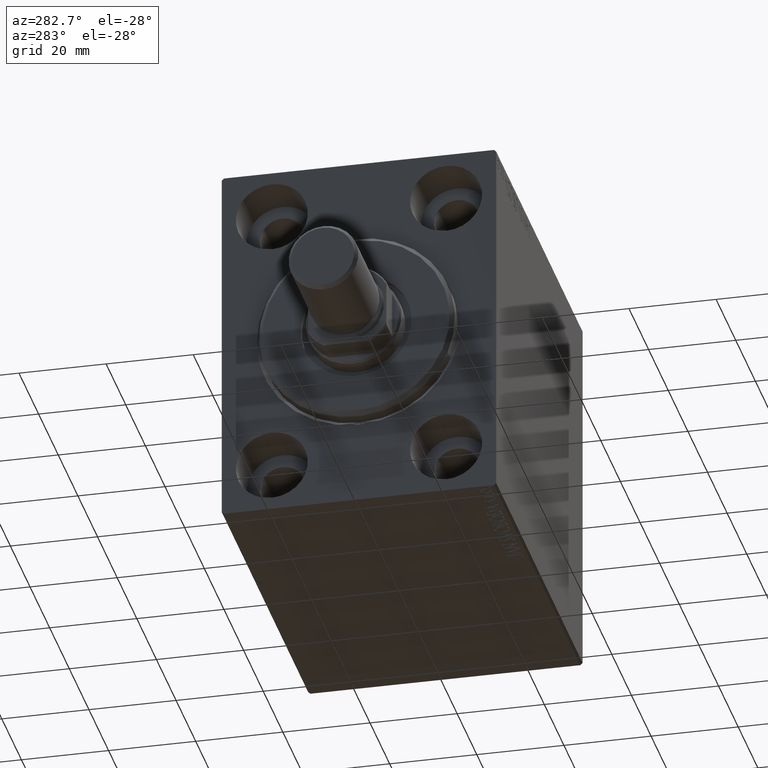
[diagram: clean part render]
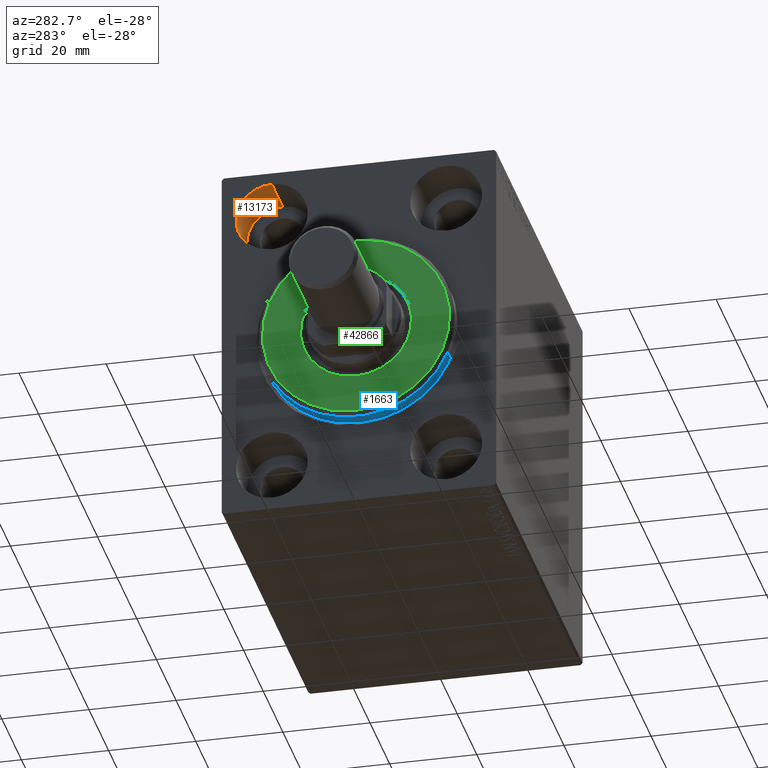
[diagram: same view with three faces highlighted in distinct colors, each labeled with its STEP entity id]
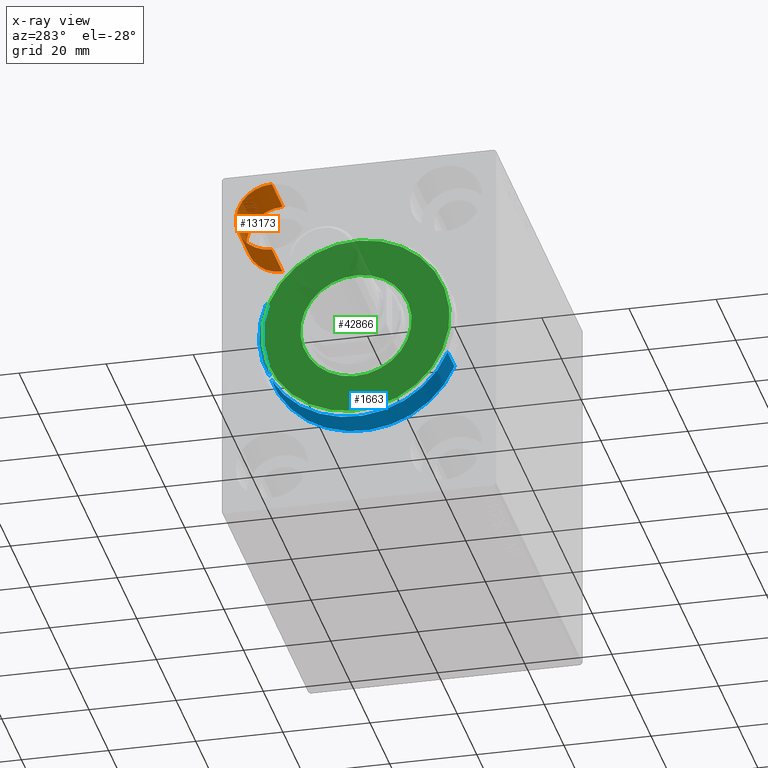
[diagram: x-ray of the same camera — body ghosted, the three highlighted faces saturated]
A machine part, auxiliary view with three faces highlighted in distinct colors.
The next image is the same camera in x-ray (body ghosted, the three faces saturated) — at least one of them is partly hidden behind the body in this view.
Their STEP definitions:

[orange] entity #13173 — the highlighted cylindrical surface (partial cylindrical patch) has radius 8.25 mm, axis along (-1, -0, -0).
#564 = CARTESIAN_POINT ( 'NONE',  ( 11.00000000000000000, 20.00000000000000355, 31.50000000000000000 ) ) ;
#2543 = LINE ( 'NONE', #32912, #39230 ) ;
#2712 = AXIS2_PLACEMENT_3D ( 'NONE', #40929, #23406, #10126 ) ;
#2977 = DIRECTION ( 'NONE',  ( -1.000000000000000000, -0.000000000000000000, -0.000000000000000000 ) ) ;
#4155 = DIRECTION ( 'NONE',  ( -1.000000000000000000, -0.000000000000000000, -0.000000000000000000 ) ) ;
#5238 = EDGE_LOOP ( 'NONE', ( #35251, #13447, #29697, #24319 ) ) ;
#9957 = AXIS2_PLACEMENT_3D ( 'NONE', #37701, #41077, #37265 ) ;
#10126 = DIRECTION ( 'NONE',  ( 0.000000000000000000, 0.000000000000000000, 1.000000000000000000 ) ) ;
#10450 = DIRECTION ( 'NONE',  ( 0.000000000000000000, 0.000000000000000000, 1.000000000000000000 ) ) ;
#11839 = LINE ( 'NONE', #19273, #25149 ) ;
#12505 = CARTESIAN_POINT ( 'NONE',  ( 11.00000000000000000, 20.00000000000000355, 23.25000000000000355 ) ) ;
#13173 = ADVANCED_FACE ( 'NONE', ( #41031 ), #31135, .F. ) ;
#13447 = ORIENTED_EDGE ( 'NONE', *, *, #33934, .F. ) ;
#15282 = AXIS2_PLACEMENT_3D ( 'NONE', #564, #4155, #10450 ) ;
#17048 = CIRCLE ( 'NONE', #2712, 8.249999999999992895 ) ;
#17251 = VERTEX_POINT ( 'NONE', #43895 ) ;
#19273 = CARTESIAN_POINT ( 'NONE',  ( 11.00000000000000000, 20.00000000000000355, 23.25000000000000355 ) ) ;
#20978 = VERTEX_POINT ( 'NONE', #42633 ) ;
#23406 = DIRECTION ( 'NONE',  ( -1.000000000000000000, 0.000000000000000000, 0.000000000000000000 ) ) ;
#24319 = ORIENTED_EDGE ( 'NONE', *, *, #30787, .T. ) ;
#25149 = VECTOR ( 'NONE', #32992, 1000.000000000000000 ) ;
#26332 = EDGE_CURVE ( 'NONE', #26989, #17251, #2543, .T. ) ;
#26466 = CIRCLE ( 'NONE', #9957, 8.249999999999992895 ) ;
#26989 = VERTEX_POINT ( 'NONE', #30204 ) ;
#29697 = ORIENTED_EDGE ( 'NONE', *, *, #26332, .T. ) ;
#30204 = CARTESIAN_POINT ( 'NONE',  ( 11.00000000000000000, 20.00000000000000355, 39.74999999999999289 ) ) ;
#30787 = EDGE_CURVE ( 'NONE', #17251, #20978, #17048, .T. ) ;
#31135 = CYLINDRICAL_SURFACE ( 'NONE', #15282, 8.249999999999992895 ) ;
#32912 = CARTESIAN_POINT ( 'NONE',  ( 11.00000000000000000, 20.00000000000000355, 39.74999999999999289 ) ) ;
#32992 = DIRECTION ( 'NONE',  ( -1.000000000000000000, -0.000000000000000000, -0.000000000000000000 ) ) ;
#33934 = EDGE_CURVE ( 'NONE', #26989, #35670, #26466, .T. ) ;
#35251 = ORIENTED_EDGE ( 'NONE', *, *, #37192, .F. ) ;
#35670 = VERTEX_POINT ( 'NONE', #12505 ) ;
#37192 = EDGE_CURVE ( 'NONE', #35670, #20978, #11839, .T. ) ;
#37265 = DIRECTION ( 'NONE',  ( 0.000000000000000000, 0.000000000000000000, 1.000000000000000000 ) ) ;
#37701 = CARTESIAN_POINT ( 'NONE',  ( 11.00000000000000000, 20.00000000000000355, 31.50000000000000000 ) ) ;
#39230 = VECTOR ( 'NONE', #2977, 1000.000000000000000 ) ;
#40929 = CARTESIAN_POINT ( 'NONE',  ( 0.000000000000000000, 20.00000000000000355, 31.50000000000000000 ) ) ;
#41031 = FACE_OUTER_BOUND ( 'NONE', #5238, .T. ) ;
#41077 = DIRECTION ( 'NONE',  ( -1.000000000000000000, 0.000000000000000000, 0.000000000000000000 ) ) ;
#42633 = CARTESIAN_POINT ( 'NONE',  ( 0.000000000000000000, 20.00000000000000355, 23.25000000000000355 ) ) ;
#43895 = CARTESIAN_POINT ( 'NONE',  ( 0.000000000000000000, 20.00000000000000355, 39.74999999999999289 ) ) ;

[blue] entity #1663 — the highlighted cylindrical surface (partial cylindrical patch) has radius 22.5 mm, axis along (1, 0, 0).
#1281 = ORIENTED_EDGE ( 'NONE', *, *, #31892, .F. ) ;
#1663 = ADVANCED_FACE ( 'NONE', ( #14628 ), #7453, .T. ) ;
#2648 = CARTESIAN_POINT ( 'NONE',  ( -5.000000000000000000, 2.755455298081545172E-15, -22.50000000000000355 ) ) ;
#4622 = DIRECTION ( 'NONE',  ( 0.000000000000000000, 0.000000000000000000, 1.000000000000000000 ) ) ;
#4896 = VERTEX_POINT ( 'NONE', #23999 ) ;
#5244 = DIRECTION ( 'NONE',  ( -1.000000000000000000, 0.000000000000000000, 0.000000000000000000 ) ) ;
#5907 = DIRECTION ( 'NONE',  ( 0.000000000000000000, 0.000000000000000000, -1.000000000000000000 ) ) ;
#6629 = CARTESIAN_POINT ( 'NONE',  ( 3.000000000000000000, 2.755455298081545172E-15, -22.50000000000000355 ) ) ;
#6978 = EDGE_CURVE ( 'NONE', #4896, #33036, #27056, .T. ) ;
#7453 = CYLINDRICAL_SURFACE ( 'NONE', #42712, 22.50000000000000355 ) ;
#7915 = ORIENTED_EDGE ( 'NONE', *, *, #6978, .F. ) ;
#8637 = VERTEX_POINT ( 'NONE', #40690 ) ;
#8974 = AXIS2_PLACEMENT_3D ( 'NONE', #36262, #5244, #5907 ) ;
#9090 = AXIS2_PLACEMENT_3D ( 'NONE', #12029, #36312, #4622 ) ;
#10438 = DIRECTION ( 'NONE',  ( -1.000000000000000000, -0.000000000000000000, -0.000000000000000000 ) ) ;
#12029 = CARTESIAN_POINT ( 'NONE',  ( -5.000000000000000000, 0.000000000000000000, 0.000000000000000000 ) ) ;
#14628 = FACE_OUTER_BOUND ( 'NONE', #28878, .T. ) ;
#18366 = VECTOR ( 'NONE', #10438, 1000.000000000000000 ) ;
#19324 = EDGE_CURVE ( 'NONE', #8637, #28477, #28351, .T. ) ;
#23999 = CARTESIAN_POINT ( 'NONE',  ( -5.000000000000000000, 0.000000000000000000, 22.50000000000000355 ) ) ;
#26217 = EDGE_CURVE ( 'NONE', #28477, #33036, #30907, .T. ) ;
#27056 = CIRCLE ( 'NONE', #9090, 22.50000000000000355 ) ;
#28351 = CIRCLE ( 'NONE', #8974, 22.50000000000000355 ) ;
#28477 = VERTEX_POINT ( 'NONE', #43982 ) ;
#28878 = EDGE_LOOP ( 'NONE', ( #32492, #31897, #7915, #1281 ) ) ;
#30907 = LINE ( 'NONE', #6629, #18366 ) ;
#31729 = DIRECTION ( 'NONE',  ( -1.000000000000000000, -0.000000000000000000, -0.000000000000000000 ) ) ;
#31892 = EDGE_CURVE ( 'NONE', #8637, #4896, #39503, .T. ) ;
#31897 = ORIENTED_EDGE ( 'NONE', *, *, #26217, .T. ) ;
#32178 = DIRECTION ( 'NONE',  ( 0.000000000000000000, 0.000000000000000000, 1.000000000000000000 ) ) ;
#32492 = ORIENTED_EDGE ( 'NONE', *, *, #19324, .T. ) ;
#33036 = VERTEX_POINT ( 'NONE', #2648 ) ;
#35064 = VECTOR ( 'NONE', #36799, 1000.000000000000000 ) ;
#35538 = CARTESIAN_POINT ( 'NONE',  ( 3.000000000000000000, 0.000000000000000000, 0.000000000000000000 ) ) ;
#36262 = CARTESIAN_POINT ( 'NONE',  ( 1.999999999999999112, 0.000000000000000000, 0.000000000000000000 ) ) ;
#36312 = DIRECTION ( 'NONE',  ( -1.000000000000000000, 0.000000000000000000, 0.000000000000000000 ) ) ;
#36579 = CARTESIAN_POINT ( 'NONE',  ( 3.000000000000000000, 0.000000000000000000, 22.50000000000000355 ) ) ;
#36799 = DIRECTION ( 'NONE',  ( -1.000000000000000000, -0.000000000000000000, -0.000000000000000000 ) ) ;
#39503 = LINE ( 'NONE', #36579, #35064 ) ;
#40690 = CARTESIAN_POINT ( 'NONE',  ( 1.999999999999999112, 0.000000000000000000, 22.50000000000000355 ) ) ;
#42712 = AXIS2_PLACEMENT_3D ( 'NONE', #35538, #31729, #32178 ) ;
#43982 = CARTESIAN_POINT ( 'NONE',  ( 1.999999999999999112, 2.755455298081545172E-15, -22.50000000000000355 ) ) ;

[green] entity #42866 — the highlighted planar face has unit normal (-1, 0, 0).
#1403 = DIRECTION ( 'NONE',  ( 0.000000000000000000, 0.000000000000000000, -1.000000000000000000 ) ) ;
#1625 = CARTESIAN_POINT ( 'NONE',  ( 3.000000000000000000, 0.000000000000000000, 0.000000000000000000 ) ) ;
#2607 = CARTESIAN_POINT ( 'NONE',  ( 3.000000000000000000, 0.000000000000000000, 0.000000000000000000 ) ) ;
#3266 = EDGE_CURVE ( 'NONE', #40551, #22926, #37704, .T. ) ;
#4688 = AXIS2_PLACEMENT_3D ( 'NONE', #2607, #9346, #10227 ) ;
#5221 = DIRECTION ( 'NONE',  ( 1.000000000000000000, -0.000000000000000000, 0.000000000000000000 ) ) ;
#5827 = CARTESIAN_POINT ( 'NONE',  ( 3.000000000000000000, 2.694222958124177598E-15, -21.50000000000000355 ) ) ;
#6953 = CARTESIAN_POINT ( 'NONE',  ( 3.000000000000000000, 0.000000000000000000, 12.75000000000000000 ) ) ;
#7061 = CARTESIAN_POINT ( 'NONE',  ( 3.000000000000000000, 0.000000000000000000, 0.000000000000000000 ) ) ;
#8096 = EDGE_CURVE ( 'NONE', #31017, #43886, #31471, .T. ) ;
#8182 = DIRECTION ( 'NONE',  ( -1.000000000000000000, 0.000000000000000000, -0.000000000000000000 ) ) ;
#9346 = DIRECTION ( 'NONE',  ( -1.000000000000000000, 0.000000000000000000, -0.000000000000000000 ) ) ;
#9579 = CARTESIAN_POINT ( 'NONE',  ( 3.000000000000000000, 0.000000000000000000, 0.000000000000000000 ) ) ;
#10227 = DIRECTION ( 'NONE',  ( 0.000000000000000000, 0.000000000000000000, -1.000000000000000000 ) ) ;
#10586 = CARTESIAN_POINT ( 'NONE',  ( 3.000000000000000000, 0.000000000000000000, 21.50000000000000355 ) ) ;
#10897 = EDGE_LOOP ( 'NONE', ( #30220, #35199 ) ) ;
#12792 = AXIS2_PLACEMENT_3D ( 'NONE', #7061, #20779, #21000 ) ;
#18482 = FACE_BOUND ( 'NONE', #10897, .T. ) ;
#20011 = AXIS2_PLACEMENT_3D ( 'NONE', #35169, #8182, #34953 ) ;
#20133 = ORIENTED_EDGE ( 'NONE', *, *, #8096, .T. ) ;
#20779 = DIRECTION ( 'NONE',  ( 1.000000000000000000, -0.000000000000000000, 0.000000000000000000 ) ) ;
#21000 = DIRECTION ( 'NONE',  ( 0.000000000000000000, 0.000000000000000000, -1.000000000000000000 ) ) ;
#22926 = VERTEX_POINT ( 'NONE', #44419 ) ;
#23305 = DIRECTION ( 'NONE',  ( 1.000000000000000000, -0.000000000000000000, 0.000000000000000000 ) ) ;
#25391 = EDGE_LOOP ( 'NONE', ( #26760, #20133 ) ) ;
#26760 = ORIENTED_EDGE ( 'NONE', *, *, #37423, .T. ) ;
#27895 = CIRCLE ( 'NONE', #20011, 12.75000000000000000 ) ;
#30220 = ORIENTED_EDGE ( 'NONE', *, *, #3266, .T. ) ;
#30885 = CIRCLE ( 'NONE', #38033, 21.50000000000000355 ) ;
#31017 = VERTEX_POINT ( 'NONE', #5827 ) ;
#31471 = CIRCLE ( 'NONE', #12792, 21.50000000000000355 ) ;
#32203 = PLANE ( 'NONE',  #41660 ) ;
#34293 = EDGE_CURVE ( 'NONE', #22926, #40551, #27895, .T. ) ;
#34953 = DIRECTION ( 'NONE',  ( 0.000000000000000000, 0.000000000000000000, -1.000000000000000000 ) ) ;
#35169 = CARTESIAN_POINT ( 'NONE',  ( 3.000000000000000000, 0.000000000000000000, 0.000000000000000000 ) ) ;
#35199 = ORIENTED_EDGE ( 'NONE', *, *, #34293, .T. ) ;
#37423 = EDGE_CURVE ( 'NONE', #43886, #31017, #30885, .T. ) ;
#37704 = CIRCLE ( 'NONE', #4688, 12.75000000000000000 ) ;
#37898 = DIRECTION ( 'NONE',  ( 0.000000000000000000, 0.000000000000000000, -1.000000000000000000 ) ) ;
#38033 = AXIS2_PLACEMENT_3D ( 'NONE', #9579, #23305, #37898 ) ;
#38935 = FACE_OUTER_BOUND ( 'NONE', #25391, .T. ) ;
#40551 = VERTEX_POINT ( 'NONE', #6953 ) ;
#41660 = AXIS2_PLACEMENT_3D ( 'NONE', #1625, #5221, #1403 ) ;
#42866 = ADVANCED_FACE ( 'NONE', ( #38935, #18482 ), #32203, .T. ) ;
#43886 = VERTEX_POINT ( 'NONE', #10586 ) ;
#44419 = CARTESIAN_POINT ( 'NONE',  ( 3.000000000000000000, 1.561424668912874914E-15, -12.75000000000000000 ) ) ;